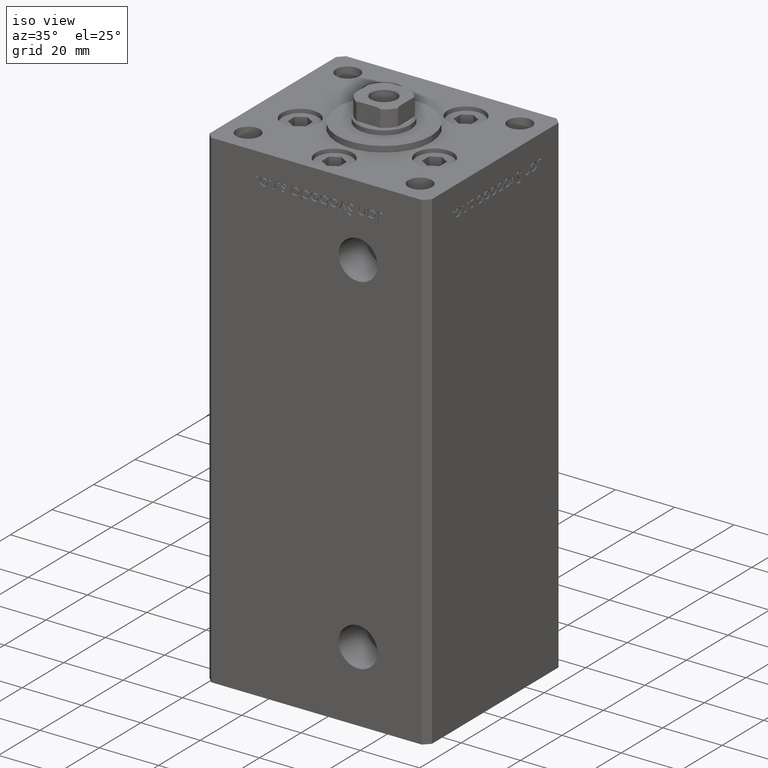
[diagram: clean part render]
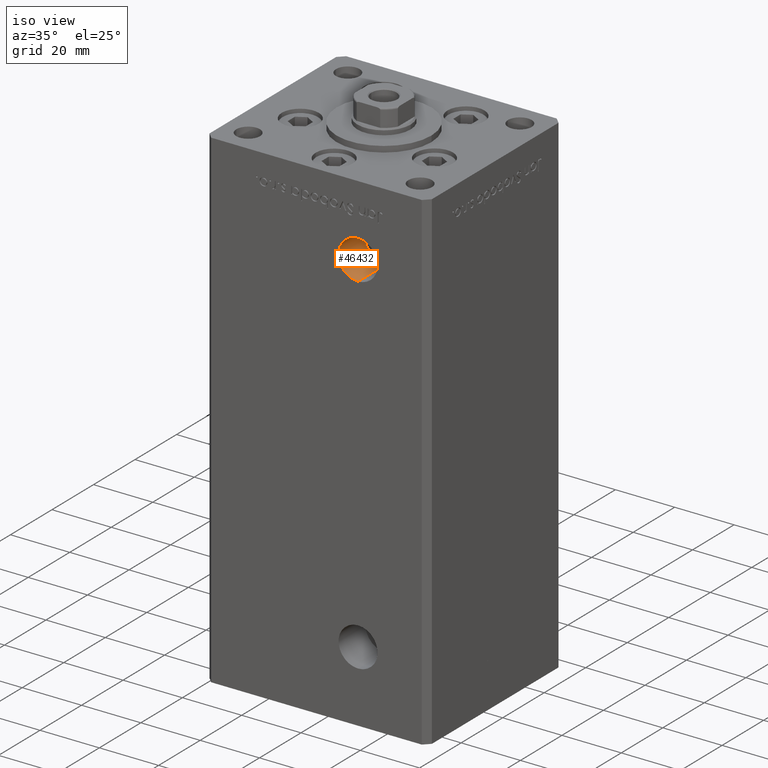
[diagram: same view with one face highlighted and labeled with its STEP entity id]
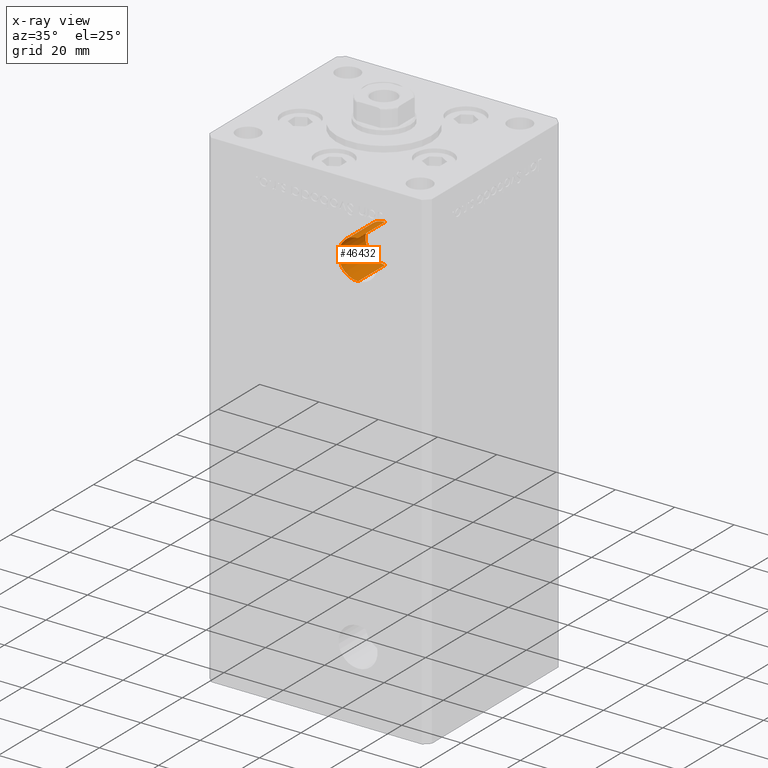
[diagram: x-ray of the same camera — body ghosted, the highlighted face saturated]
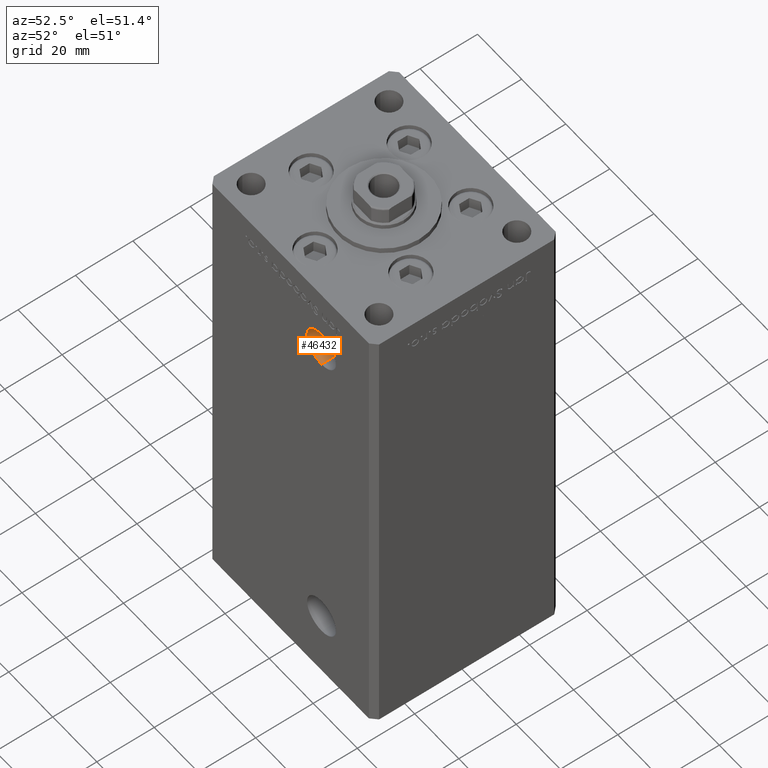
[diagram: same view with one face highlighted and labeled with its STEP entity id]
A machine part, iso view. The second image highlights one B-rep face of the part: STEP entity #46432.
The next image is the same camera in x-ray: the body ghosted, the highlighted face saturated — about 0% of this face is hidden behind the body in this view.
A second angle (auxiliary view) of the same face is appended — the face is thin or edge-on in the first view.
In plain terms, the highlighted cylindrical surface (edge-blend (fillet) strip) has radius 6.58 mm, axis along (-0, -1, -0).
Its self-contained STEP definition (entity closure, byte-faithful):
#2125 = DIRECTION ( 'NONE',  ( 0.000000000000000000, 0.000000000000000000, -1.000000000000000000 ) ) ;
#5847 = DIRECTION ( 'NONE',  ( -0.000000000000000000, -1.000000000000000000, -0.000000000000000000 ) ) ;
#7507 = VECTOR ( 'NONE', #5847, 1000.000000000000000 ) ;
#8016 = AXIS2_PLACEMENT_3D ( 'NONE', #45641, #25886, #2125 ) ;
#8998 = VECTOR ( 'NONE', #18933, 1000.000000000000000 ) ;
#9639 = CARTESIAN_POINT ( 'NONE',  ( 13.99999999999999112, -32.50000000000000000, 120.4200000000000017 ) ) ;
#12140 = EDGE_LOOP ( 'NONE', ( #48648, #18955, #33867, #46234 ) ) ;
#13588 = CARTESIAN_POINT ( 'NONE',  ( 13.99999999999999112, -19.50000000000000355, 133.5800000000000125 ) ) ;
#13763 = LINE ( 'NONE', #33031, #7507 ) ;
#15104 = EDGE_CURVE ( 'NONE', #16669, #23159, #22107, .T. ) ;
#16669 = VERTEX_POINT ( 'NONE', #13588 ) ;
#17650 = CIRCLE ( 'NONE', #37014, 6.580000000000002736 ) ;
#18933 = DIRECTION ( 'NONE',  ( -0.000000000000000000, -1.000000000000000000, -0.000000000000000000 ) ) ;
#18955 = ORIENTED_EDGE ( 'NONE', *, *, #15104, .T. ) ;
#19971 = EDGE_CURVE ( 'NONE', #30366, #29019, #13763, .T. ) ;
#19977 = EDGE_CURVE ( 'NONE', #29019, #23159, #17650, .T. ) ;
#21986 = AXIS2_PLACEMENT_3D ( 'NONE', #33935, #29996, #24724 ) ;
#22107 = LINE ( 'NONE', #26861, #8998 ) ;
#23159 = VERTEX_POINT ( 'NONE', #42473 ) ;
#24724 = DIRECTION ( 'NONE',  ( 0.000000000000000000, 0.000000000000000000, -1.000000000000000000 ) ) ;
#25375 = EDGE_CURVE ( 'NONE', #30366, #16669, #38382, .T. ) ;
#25886 = DIRECTION ( 'NONE',  ( -0.000000000000000000, 1.000000000000000000, -0.000000000000000000 ) ) ;
#25916 = CARTESIAN_POINT ( 'NONE',  ( 13.99999999999999112, -32.50000000000000000, 127.0000000000000000 ) ) ;
#26861 = CARTESIAN_POINT ( 'NONE',  ( 13.99999999999999112, -19.50000000000000355, 133.5800000000000125 ) ) ;
#29019 = VERTEX_POINT ( 'NONE', #9639 ) ;
#29732 = CYLINDRICAL_SURFACE ( 'NONE', #21986, 6.580000000000002736 ) ;
#29996 = DIRECTION ( 'NONE',  ( -0.000000000000000000, -1.000000000000000000, -0.000000000000000000 ) ) ;
#30366 = VERTEX_POINT ( 'NONE', #52113 ) ;
#33031 = CARTESIAN_POINT ( 'NONE',  ( 13.99999999999999112, -19.50000000000000355, 120.4200000000000017 ) ) ;
#33867 = ORIENTED_EDGE ( 'NONE', *, *, #19977, .F. ) ;
#33935 = CARTESIAN_POINT ( 'NONE',  ( 13.99999999999999112, -19.50000000000000355, 127.0000000000000000 ) ) ;
#37014 = AXIS2_PLACEMENT_3D ( 'NONE', #25916, #37256, #45932 ) ;
#37256 = DIRECTION ( 'NONE',  ( -0.000000000000000000, 1.000000000000000000, -0.000000000000000000 ) ) ;
#38382 = CIRCLE ( 'NONE', #8016, 6.580000000000002736 ) ;
#42473 = CARTESIAN_POINT ( 'NONE',  ( 13.99999999999999112, -32.50000000000000000, 133.5800000000000125 ) ) ;
#45641 = CARTESIAN_POINT ( 'NONE',  ( 13.99999999999999112, -19.50000000000000355, 127.0000000000000000 ) ) ;
#45932 = DIRECTION ( 'NONE',  ( 0.000000000000000000, 0.000000000000000000, -1.000000000000000000 ) ) ;
#46049 = FACE_OUTER_BOUND ( 'NONE', #12140, .T. ) ;
#46234 = ORIENTED_EDGE ( 'NONE', *, *, #19971, .F. ) ;
#46432 = ADVANCED_FACE ( 'NONE', ( #46049 ), #29732, .F. ) ;
#48648 = ORIENTED_EDGE ( 'NONE', *, *, #25375, .T. ) ;
#52113 = CARTESIAN_POINT ( 'NONE',  ( 13.99999999999999112, -19.50000000000000355, 120.4200000000000017 ) ) ;